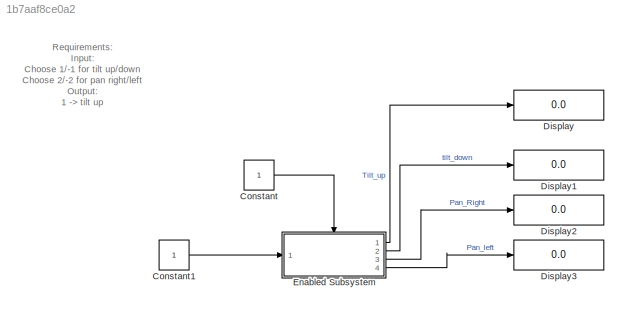
MODEL slx_1b7aaf8ce0a2
KIND model
CONFIG AbsTol = auto
CONFIG EnableMultiTasking = off
CONFIG FixedStep = auto
CONFIG MaxStep = auto
CONFIG MinStep = auto
CONFIG RelTol = 1e-3
CONFIG SampleTimeConstraint = Unconstrained
CONFIG Solver = VariableStepAuto
CONFIG SolverName = VariableStepAuto
CONFIG StartTime = 0.0
CONFIG StopTime = 10.0
BLOCK [Constant] Constant
BLOCK [Constant] Constant1
BLOCK [Display] Display
  Decimation = 1
  Ports = [1]
BLOCK [Display] Display1
  Decimation = 1
  Ports = [1]
BLOCK [Display] Display2
  Decimation = 1
  Ports = [1]
BLOCK [Display] Display3
  Decimation = 1
  Ports = [1]
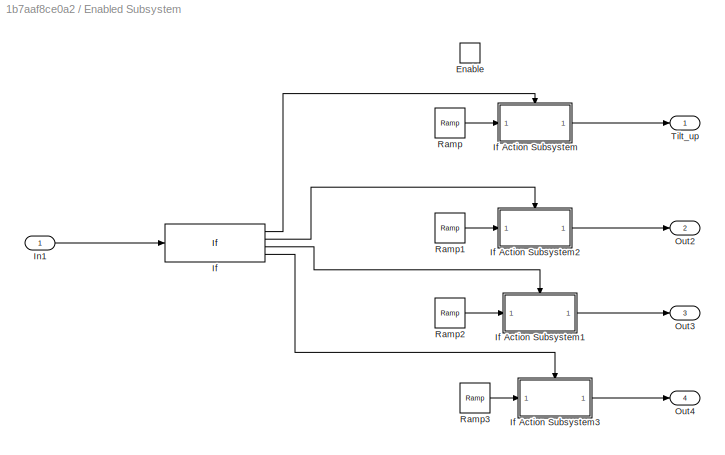
BLOCK [SubSystem] Enabled Subsystem
  Ports = [1, 4, 1]
  RequestExecContextInheritance = off
  TreatAsAtomicUnit = on
BLOCK [EnablePort] Enabled Subsystem/Enable
  Ports = []
BLOCK [If] Enabled Subsystem/If
  ElseIfExpressions = u1==-1 , u1==2
  IfExpression = u1==1
  Ports = [1, 4]
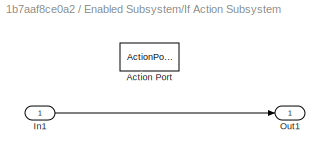
BLOCK [SubSystem] Enabled Subsystem/If Action Subsystem
  Ports = [1, 1, 0, 0, 0, 0, 0, 1]
  RequestExecContextInheritance = off
  TreatAsAtomicUnit = on
BLOCK [ActionPort] Enabled Subsystem/If Action Subsystem/Action Port
BLOCK [Inport] Enabled Subsystem/If Action Subsystem/In1
BLOCK [Outport] Enabled Subsystem/If Action Subsystem/Out1
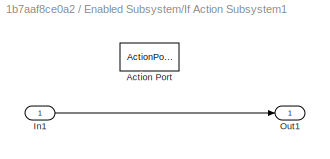
BLOCK [SubSystem] Enabled Subsystem/If Action Subsystem1
  Ports = [1, 1, 0, 0, 0, 0, 0, 1]
  RequestExecContextInheritance = off
  TreatAsAtomicUnit = on
BLOCK [ActionPort] Enabled Subsystem/If Action Subsystem1/Action Port
BLOCK [Inport] Enabled Subsystem/If Action Subsystem1/In1
BLOCK [Outport] Enabled Subsystem/If Action Subsystem1/Out1
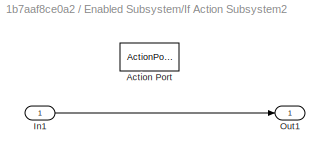
BLOCK [SubSystem] Enabled Subsystem/If Action Subsystem2
  Ports = [1, 1, 0, 0, 0, 0, 0, 1]
  RequestExecContextInheritance = off
  TreatAsAtomicUnit = on
BLOCK [ActionPort] Enabled Subsystem/If Action Subsystem2/Action Port
BLOCK [Inport] Enabled Subsystem/If Action Subsystem2/In1
BLOCK [Outport] Enabled Subsystem/If Action Subsystem2/Out1
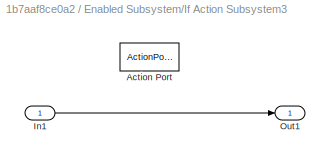
BLOCK [SubSystem] Enabled Subsystem/If Action Subsystem3
  Ports = [1, 1, 0, 0, 0, 0, 0, 1]
  RequestExecContextInheritance = off
  TreatAsAtomicUnit = on
BLOCK [ActionPort] Enabled Subsystem/If Action Subsystem3/Action Port
BLOCK [Inport] Enabled Subsystem/If Action Subsystem3/In1
BLOCK [Outport] Enabled Subsystem/If Action Subsystem3/Out1
BLOCK [Inport] Enabled Subsystem/In1
BLOCK [Outport] Enabled Subsystem/Out2
  Port = 2
BLOCK [Outport] Enabled Subsystem/Out3
  Port = 3
BLOCK [Outport] Enabled Subsystem/Out4
  Port = 4
BLOCK [Reference] Enabled Subsystem/Ramp  REF=simulink/Sources/Ramp
  Ports = [0, 1]
  SourceBlock = simulink/Sources/Ramp
  SourceProductBaseCode = SL
  SourceType = Ramp
BLOCK [Reference] Enabled Subsystem/Ramp1  REF=simulink/Sources/Ramp
  Ports = [0, 1]
  SourceBlock = simulink/Sources/Ramp
  SourceProductBaseCode = SL
  SourceType = Ramp
BLOCK [Reference] Enabled Subsystem/Ramp2  REF=simulink/Sources/Ramp
  Ports = [0, 1]
  SourceBlock = simulink/Sources/Ramp
  SourceProductBaseCode = SL
  SourceType = Ramp
BLOCK [Reference] Enabled Subsystem/Ramp3  REF=simulink/Sources/Ramp
  Ports = [0, 1]
  SourceBlock = simulink/Sources/Ramp
  SourceProductBaseCode = SL
  SourceType = Ramp
BLOCK [Outport] Enabled Subsystem/Tilt_up
ANNOTATION (root): Requirements: Input: Choose 1/-1 for tilt up/down Choose 2/-2 for pan right/left Output: 1 -> tilt up 2 -> pan right -1 -> tilt down -2 -> pan down
LINE Constant1:1 -> Enabled Subsystem:1
LINE Constant:1 -> Enabled Subsystem:enable
LINE Enabled Subsystem/If Action Subsystem/In1:1 -> Enabled Subsystem/If Action Subsystem/Out1:1
LINE Enabled Subsystem/If Action Subsystem1/In1:1 -> Enabled Subsystem/If Action Subsystem1/Out1:1
LINE Enabled Subsystem/If Action Subsystem1:1 -> Enabled Subsystem/Out3:1
LINE Enabled Subsystem/If Action Subsystem2/In1:1 -> Enabled Subsystem/If Action Subsystem2/Out1:1
LINE Enabled Subsystem/If Action Subsystem2:1 -> Enabled Subsystem/Out2:1
LINE Enabled Subsystem/If Action Subsystem3/In1:1 -> Enabled Subsystem/If Action Subsystem3/Out1:1
LINE Enabled Subsystem/If Action Subsystem3:1 -> Enabled Subsystem/Out4:1
LINE Enabled Subsystem/If Action Subsystem:1 -> Enabled Subsystem/Tilt_up:1
LINE Enabled Subsystem/If:1 -> Enabled Subsystem/If Action Subsystem:ifaction
LINE Enabled Subsystem/If:2 -> Enabled Subsystem/If Action Subsystem2:ifaction
LINE Enabled Subsystem/If:3 -> Enabled Subsystem/If Action Subsystem1:ifaction
LINE Enabled Subsystem/If:4 -> Enabled Subsystem/If Action Subsystem3:ifaction
LINE Enabled Subsystem/In1:1 -> Enabled Subsystem/If:1
LINE Enabled Subsystem/Ramp1:1 -> Enabled Subsystem/If Action Subsystem2:1
LINE Enabled Subsystem/Ramp2:1 -> Enabled Subsystem/If Action Subsystem1:1
LINE Enabled Subsystem/Ramp3:1 -> Enabled Subsystem/If Action Subsystem3:1
LINE Enabled Subsystem/Ramp:1 -> Enabled Subsystem/If Action Subsystem:1
LINE Enabled Subsystem:1 -> Display:1
LINE Enabled Subsystem:2 -> Display1:1
LINE Enabled Subsystem:3 -> Display2:1
LINE Enabled Subsystem:4 -> Display3:1
